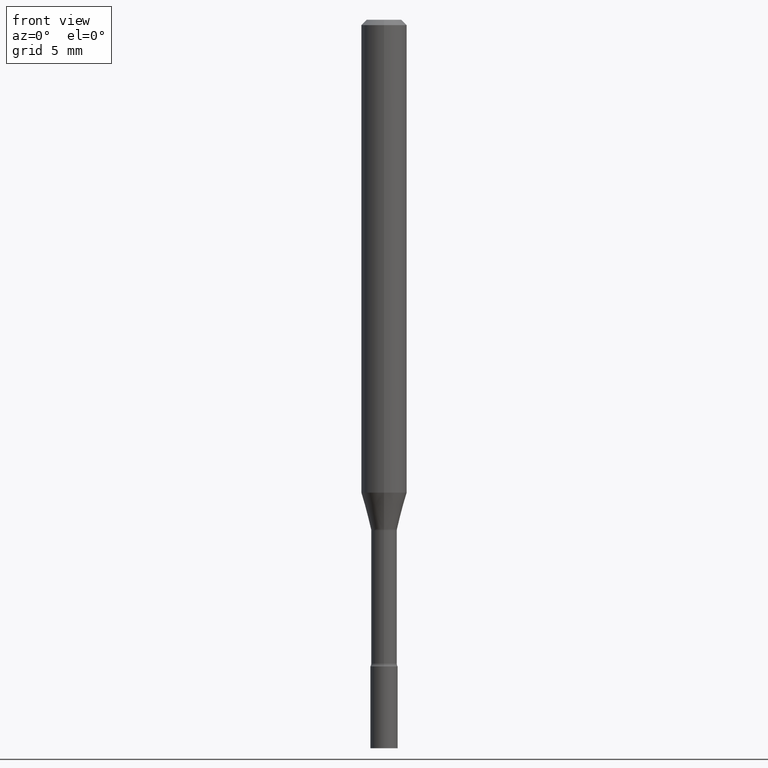
[diagram: clean part render]
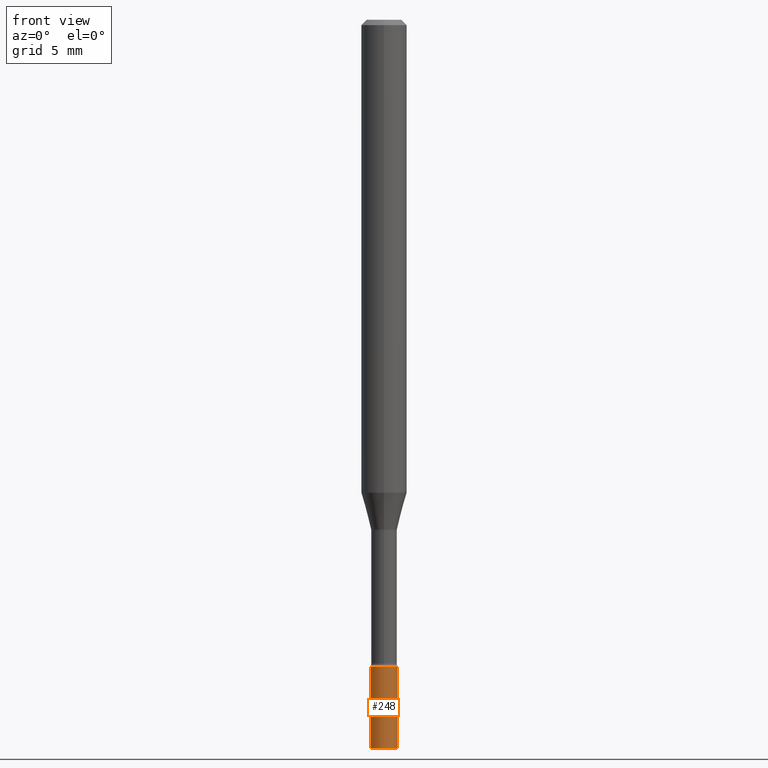
[diagram: same view with one face highlighted and labeled with its STEP entity id]
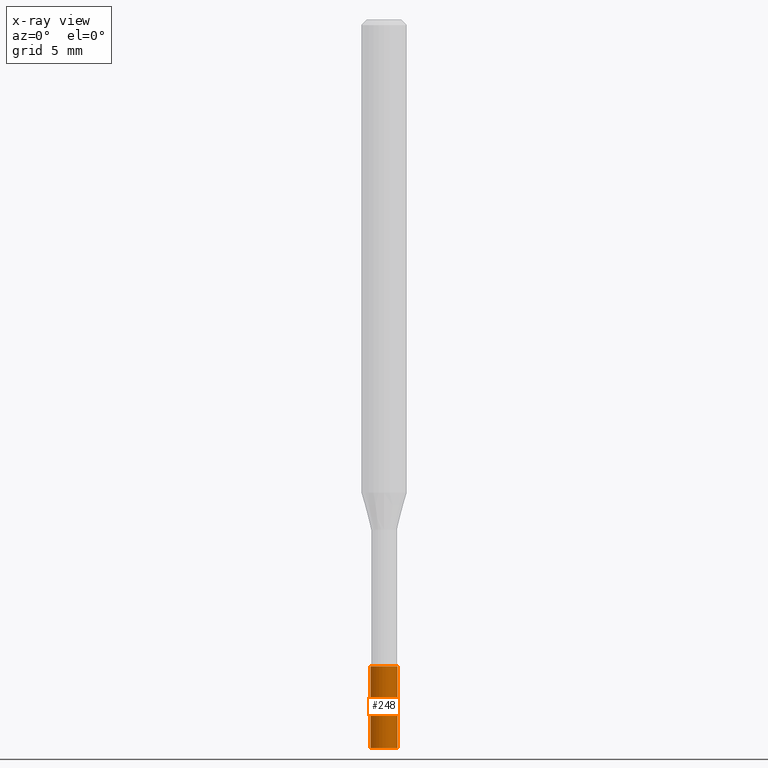
[diagram: x-ray of the same camera — body ghosted, the highlighted face saturated]
A machine part, front view. The second image highlights one B-rep face of the part: STEP entity #248.
The next image is the same camera in x-ray: the body ghosted, the highlighted face saturated — about 0% of this face is hidden behind the body in this view.
In plain terms, the highlighted cylindrical surface (edge-blend (fillet) strip) has radius 0.9525 mm, axis along (-0, 0, 1).
Its self-contained STEP definition (entity closure, byte-faithful):
#1 = DIRECTION ( 'NONE',  ( 1.000000000000000000, -6.982962677686268288E-15, 0.000000000000000000 ) ) ;
#4 = DIRECTION ( 'NONE',  ( -2.445468806185136597E-29, 3.491481338843145583E-15, 1.000000000000000000 ) ) ;
#17 = VERTEX_POINT ( 'NONE', #507 ) ;
#19 = VERTEX_POINT ( 'NONE', #29 ) ;
#29 = CARTESIAN_POINT ( 'NONE',  ( -0.03749999999999999861, -6.323717501156401251E-15, -2.000000000000000000 ) ) ;
#43 = ORIENTED_EDGE ( 'NONE', *, *, #114, .F. ) ;
#55 = CARTESIAN_POINT ( 'NONE',  ( 4.890937612370273194E-29, -6.982962677686291165E-15, -2.000000000000000000 ) ) ;
#58 = CARTESIAN_POINT ( 'NONE',  ( 4.340707130978617347E-29, -6.197379376446583794E-15, -1.775000000000000133 ) ) ;
#60 = ORIENTED_EDGE ( 'NONE', *, *, #324, .F. ) ;
#110 = AXIS2_PLACEMENT_3D ( 'NONE', #55, #4, #170 ) ;
#114 = EDGE_CURVE ( 'NONE', #19, #286, #469, .T. ) ;
#120 = CYLINDRICAL_SURFACE ( 'NONE', #377, 0.03749999999999999861 ) ;
#121 = ORIENTED_EDGE ( 'NONE', *, *, #315, .T. ) ;
#131 = VECTOR ( 'NONE', #187, 39.37007874015748143 ) ;
#170 = DIRECTION ( 'NONE',  ( 1.000000000000000000, -6.982962677686268288E-15, 0.000000000000000000 ) ) ;
#187 = DIRECTION ( 'NONE',  ( -2.445468806185136877E-29, 3.491481338843145188E-15, 1.000000000000000000 ) ) ;
#192 = LINE ( 'NONE', #354, #415 ) ;
#196 = FACE_OUTER_BOUND ( 'NONE', #412, .T. ) ;
#238 = DIRECTION ( 'NONE',  ( 1.000000000000000000, -6.982962677686266711E-15, 4.876176775795935793E-29 ) ) ;
#242 = AXIS2_PLACEMENT_3D ( 'NONE', #58, #254, #1 ) ;
#248 = ADVANCED_FACE ( 'NONE', ( #196 ), #120, .T. ) ;
#254 = DIRECTION ( 'NONE',  ( -2.445468806185136597E-29, 3.491481338843145583E-15, 1.000000000000000000 ) ) ;
#282 = CARTESIAN_POINT ( 'NONE',  ( 0.03749999999999999861, -6.459240476859818795E-15, -1.775000000000000133 ) ) ;
#286 = VERTEX_POINT ( 'NONE', #474 ) ;
#289 = VERTEX_POINT ( 'NONE', #282 ) ;
#315 = EDGE_CURVE ( 'NONE', #17, #289, #192, .T. ) ;
#324 = EDGE_CURVE ( 'NONE', #286, #289, #423, .T. ) ;
#335 = CIRCLE ( 'NONE', #110, 0.03749999999999999861 ) ;
#354 = CARTESIAN_POINT ( 'NONE',  ( 0.03749999999999999861, -2.618611004132350016E-16, 1.828566290923475922E-30 ) ) ;
#377 = AXIS2_PLACEMENT_3D ( 'NONE', #395, #393, #238 ) ;
#393 = DIRECTION ( 'NONE',  ( -2.445468806185136597E-29, 3.491481338843145583E-15, 1.000000000000000000 ) ) ;
#395 = CARTESIAN_POINT ( 'NONE',  ( 0.000000000000000000, 0.000000000000000000, 0.000000000000000000 ) ) ;
#399 = ORIENTED_EDGE ( 'NONE', *, *, #429, .T. ) ;
#412 = EDGE_LOOP ( 'NONE', ( #43, #399, #121, #60 ) ) ;
#415 = VECTOR ( 'NONE', #482, 39.37007874015748143 ) ;
#423 = CIRCLE ( 'NONE', #242, 0.03749999999999999861 ) ;
#429 = EDGE_CURVE ( 'NONE', #19, #17, #335, .T. ) ;
#463 = CARTESIAN_POINT ( 'NONE',  ( -0.03749999999999999861, 2.664535259100375598E-16, -1.844600658845589458E-30 ) ) ;
#469 = LINE ( 'NONE', #463, #131 ) ;
#474 = CARTESIAN_POINT ( 'NONE',  ( -0.03749999999999999861, -6.323717501156401251E-15, -1.775000000000000133 ) ) ;
#482 = DIRECTION ( 'NONE',  ( -2.445468806185136877E-29, 3.491481338843145188E-15, 1.000000000000000000 ) ) ;
#507 = CARTESIAN_POINT ( 'NONE',  ( 0.03749999999999999861, -7.244823778099525378E-15, -2.000000000000000000 ) ) ;